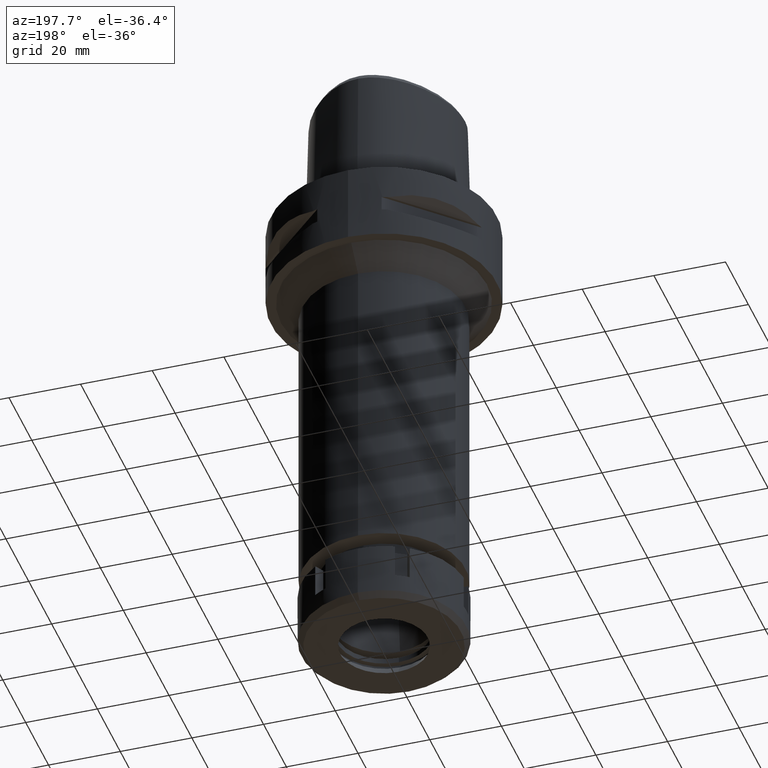
[diagram: clean part render]
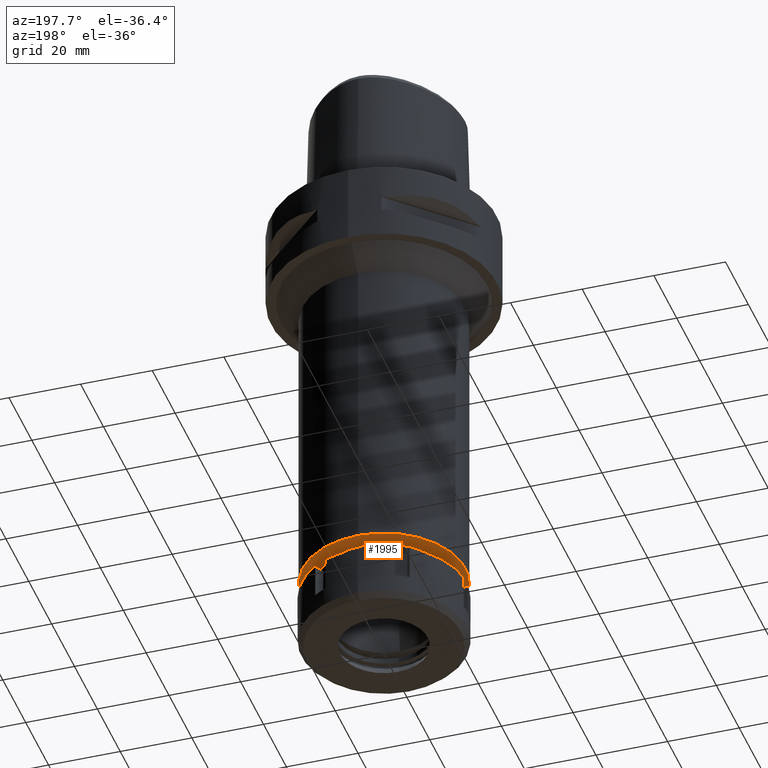
[diagram: same view with one face highlighted and labeled with its STEP entity id]
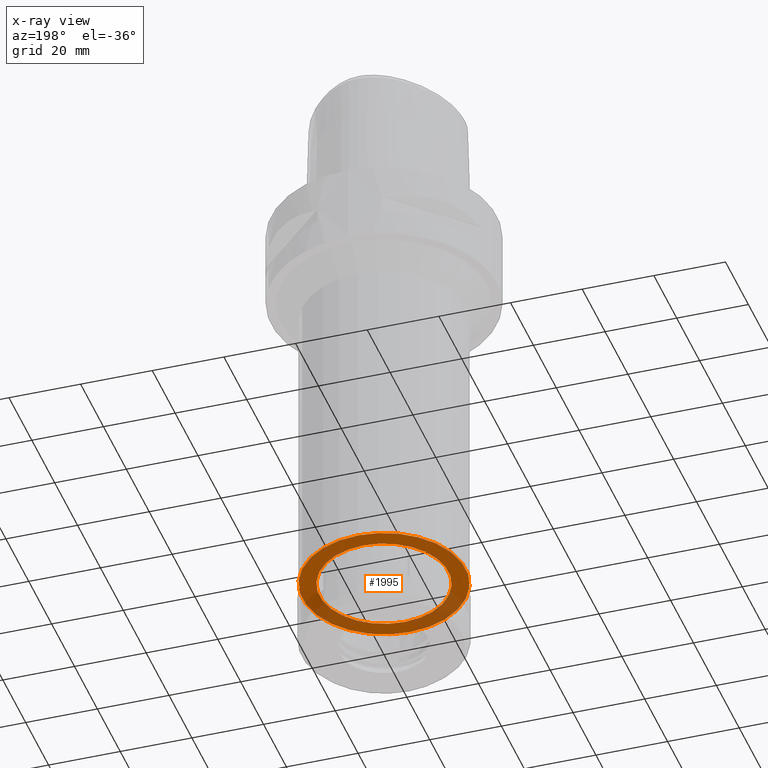
[diagram: x-ray of the same camera — body ghosted, the highlighted face saturated]
A machine part, auxiliary view. The second image highlights one B-rep face of the part: STEP entity #1995.
The next image is the same camera in x-ray: the body ghosted, the highlighted face saturated — about 28% of this face is hidden behind the body in this view.
In plain terms, the highlighted planar face has unit normal (0, 0, -1).
Its self-contained STEP definition (entity closure, byte-faithful):
#73 = EDGE_CURVE ( 'NONE', #3236, #3060, #4172, .T. ) ;
#74 = DIRECTION ( 'NONE',  ( 0.0000000000000000000, 0.0000000000000000000, 1.000000000000000000 ) ) ;
#340 = PLANE ( 'NONE',  #1131 ) ;
#356 = ORIENTED_EDGE ( 'NONE', *, *, #405, .F. ) ;
#405 = EDGE_CURVE ( 'NONE', #3890, #1221, #1210, .T. ) ;
#435 = CARTESIAN_POINT ( 'NONE',  ( 0.0000000000000000000, 0.0000000000000000000, -114.5000000000000000 ) ) ;
#528 = AXIS2_PLACEMENT_3D ( 'NONE', #2957, #4693, #4306 ) ;
#790 = CIRCLE ( 'NONE', #528, 18.00000000000000000 ) ;
#809 = CARTESIAN_POINT ( 'NONE',  ( 0.0000000000000000000, -18.00000000000000000, -114.5000000000000000 ) ) ;
#840 = DIRECTION ( 'NONE',  ( 0.0000000000000000000, 0.0000000000000000000, -1.000000000000000000 ) ) ;
#894 = ORIENTED_EDGE ( 'NONE', *, *, #4311, .F. ) ;
#1042 = CARTESIAN_POINT ( 'NONE',  ( 0.0000000000000000000, 1.302411870892999789E-14, -114.5000000000000000 ) ) ;
#1131 = AXIS2_PLACEMENT_3D ( 'NONE', #435, #2144, #2168 ) ;
#1210 = CIRCLE ( 'NONE', #2818, 22.75000000000000000 ) ;
#1221 = VERTEX_POINT ( 'NONE', #3490 ) ;
#1232 = DIRECTION ( 'NONE',  ( 0.0000000000000000000, 1.000000000000000000, 0.0000000000000000000 ) ) ;
#1476 = DIRECTION ( 'NONE',  ( 0.0000000000000000000, 1.000000000000000000, 0.0000000000000000000 ) ) ;
#1484 = AXIS2_PLACEMENT_3D ( 'NONE', #1042, #2820, #1476 ) ;
#1715 = EDGE_LOOP ( 'NONE', ( #894, #356 ) ) ;
#1829 = CARTESIAN_POINT ( 'NONE',  ( 0.0000000000000000000, 1.302411870892999789E-14, -114.5000000000000000 ) ) ;
#1956 = ORIENTED_EDGE ( 'NONE', *, *, #73, .F. ) ;
#1995 = ADVANCED_FACE ( 'NONE', ( #4750, #5065 ), #340, .T. ) ;
#2144 = DIRECTION ( 'NONE',  ( 0.0000000000000000000, 0.0000000000000000000, -1.000000000000000000 ) ) ;
#2168 = DIRECTION ( 'NONE',  ( 0.0000000000000000000, -1.000000000000000000, 0.0000000000000000000 ) ) ;
#2258 = CARTESIAN_POINT ( 'NONE',  ( 0.0000000000000000000, 18.00000000000000000, -114.5000000000000000 ) ) ;
#2648 = DIRECTION ( 'NONE',  ( 0.0000000000000000000, -1.000000000000000000, 0.0000000000000000000 ) ) ;
#2818 = AXIS2_PLACEMENT_3D ( 'NONE', #1829, #74, #2648 ) ;
#2820 = DIRECTION ( 'NONE',  ( 0.0000000000000000000, 0.0000000000000000000, 1.000000000000000000 ) ) ;
#2957 = CARTESIAN_POINT ( 'NONE',  ( 0.0000000000000000000, 1.302411870892999789E-14, -114.5000000000000000 ) ) ;
#3060 = VERTEX_POINT ( 'NONE', #809 ) ;
#3153 = EDGE_CURVE ( 'NONE', #3060, #3236, #790, .T. ) ;
#3236 = VERTEX_POINT ( 'NONE', #2258 ) ;
#3490 = CARTESIAN_POINT ( 'NONE',  ( 0.0000000000000000000, 22.75000000000000000, -114.5000000000000000 ) ) ;
#3570 = ORIENTED_EDGE ( 'NONE', *, *, #3153, .F. ) ;
#3890 = VERTEX_POINT ( 'NONE', #5178 ) ;
#4012 = AXIS2_PLACEMENT_3D ( 'NONE', #4271, #840, #1232 ) ;
#4013 = CIRCLE ( 'NONE', #1484, 22.75000000000000000 ) ;
#4172 = CIRCLE ( 'NONE', #4012, 18.00000000000000000 ) ;
#4271 = CARTESIAN_POINT ( 'NONE',  ( 0.0000000000000000000, 1.302411870892999789E-14, -114.5000000000000000 ) ) ;
#4306 = DIRECTION ( 'NONE',  ( 0.0000000000000000000, -1.000000000000000000, 0.0000000000000000000 ) ) ;
#4311 = EDGE_CURVE ( 'NONE', #1221, #3890, #4013, .T. ) ;
#4693 = DIRECTION ( 'NONE',  ( 0.0000000000000000000, 0.0000000000000000000, -1.000000000000000000 ) ) ;
#4750 = FACE_OUTER_BOUND ( 'NONE', #1715, .T. ) ;
#4970 = EDGE_LOOP ( 'NONE', ( #1956, #3570 ) ) ;
#5065 = FACE_BOUND ( 'NONE', #4970, .T. ) ;
#5178 = CARTESIAN_POINT ( 'NONE',  ( 0.0000000000000000000, -22.75000000000000000, -114.5000000000000000 ) ) ;